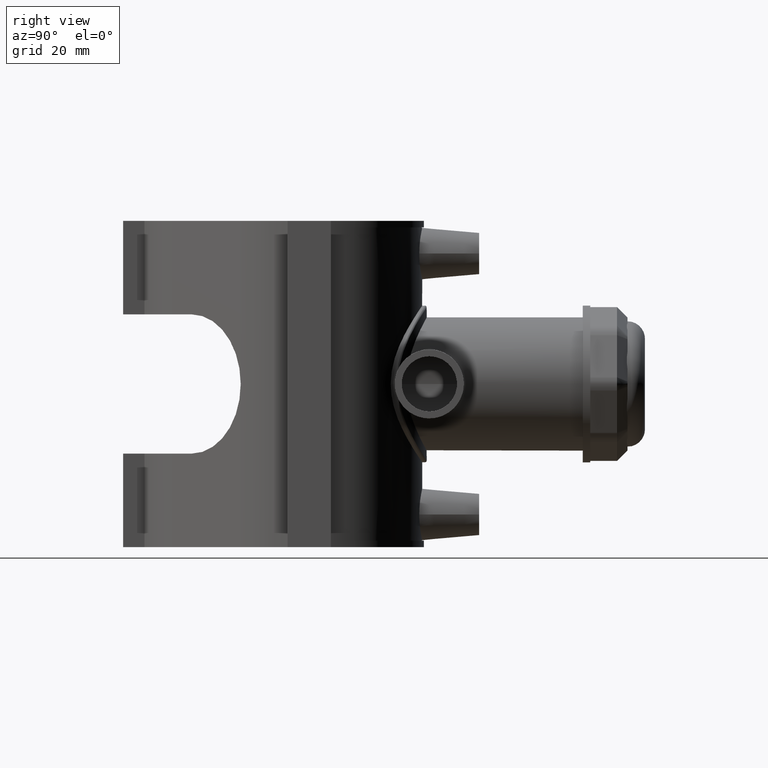
[diagram: clean part render]
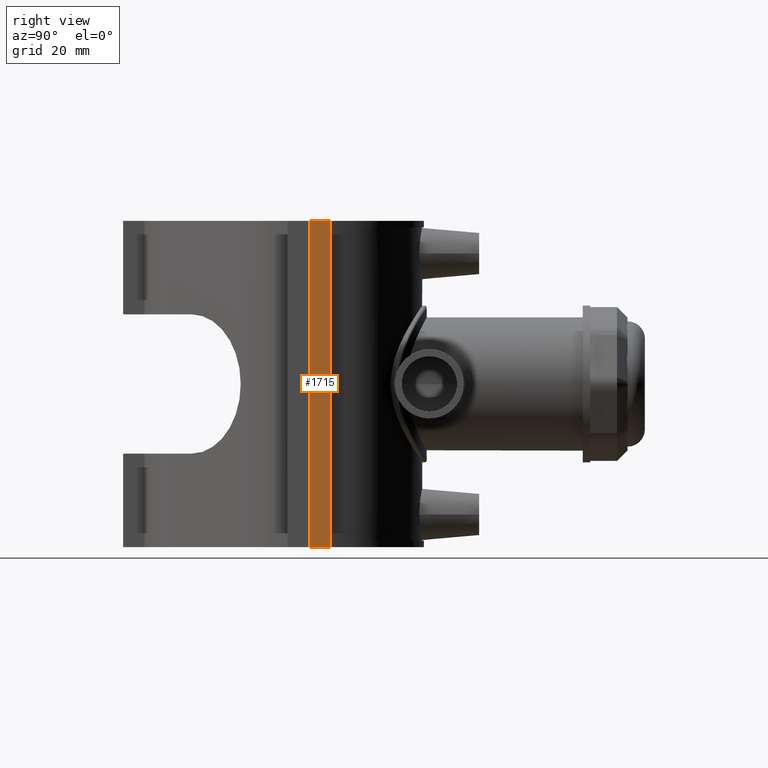
[diagram: same view with one face highlighted and labeled with its STEP entity id]
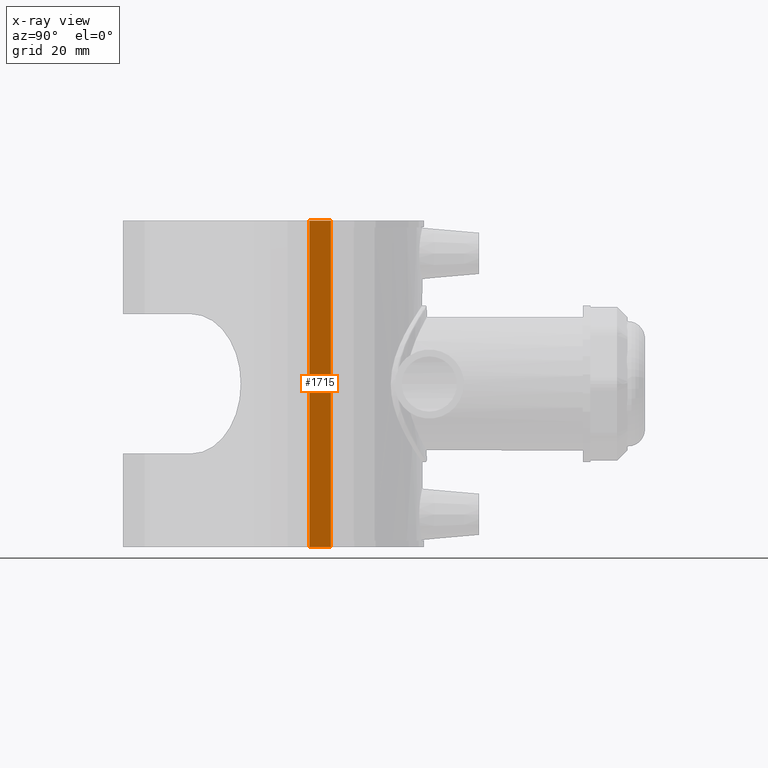
[diagram: x-ray of the same camera — body ghosted, the highlighted face saturated]
A machine part, right view. The second image highlights one B-rep face of the part: STEP entity #1715.
The next image is the same camera in x-ray: the body ghosted, the highlighted face saturated — about 0% of this face is hidden behind the body in this view.
In plain terms, the highlighted planar face has unit normal (1, 0, 0).
Its self-contained STEP definition (entity closure, byte-faithful):
#101=LINE('',#3242,#244);
#115=LINE('',#3380,#258);
#117=LINE('',#3383,#260);
#120=LINE('',#3389,#263);
#244=VECTOR('',#2192,118.);
#258=VECTOR('',#2268,118.);
#260=VECTOR('',#2272,7.82499999999999);
#263=VECTOR('',#2281,7.82499999999999);
#358=PLANE('',#1879);
#554=FACE_OUTER_BOUND('',#684,.T.);
#684=EDGE_LOOP('',(#1465,#1466,#1467,#1468));
#822=VERTEX_POINT('',#3239);
#823=VERTEX_POINT('',#3241);
#847=VERTEX_POINT('',#3377);
#848=VERTEX_POINT('',#3379);
#1027=EDGE_CURVE('',#823,#822,#101,.T.);
#1056=EDGE_CURVE('',#848,#847,#115,.T.);
#1058=EDGE_CURVE('',#848,#822,#117,.T.);
#1063=EDGE_CURVE('',#823,#847,#120,.T.);
#1465=ORIENTED_EDGE('',*,*,#1056,.T.);
#1466=ORIENTED_EDGE('',*,*,#1063,.F.);
#1467=ORIENTED_EDGE('',*,*,#1027,.T.);
#1468=ORIENTED_EDGE('',*,*,#1058,.F.);
#1715=ADVANCED_FACE('',(#554),#358,.T.);
#1879=AXIS2_PLACEMENT_3D('',#3391,#2284,#2285);
#2192=DIRECTION('',(0.,0.,1.));
#2268=DIRECTION('',(0.,0.,-1.));
#2272=DIRECTION('',(0.,1.,0.));
#2281=DIRECTION('',(0.,-1.,0.));
#2284=DIRECTION('center_axis',(1.,0.,0.));
#2285=DIRECTION('ref_axis',(0.,1.,0.));
#3239=CARTESIAN_POINT('',(50.,7.87499999999999,59.));
#3241=CARTESIAN_POINT('',(50.,7.87499999999999,-59.));
#3242=CARTESIAN_POINT('',(50.,7.87499999999999,0.));
#3377=CARTESIAN_POINT('',(50.,0.0500000000000078,-59.));
#3379=CARTESIAN_POINT('',(50.,0.0500000000000078,59.));
#3380=CARTESIAN_POINT('',(50.,0.0500000000000078,-29.5));
#3383=CARTESIAN_POINT('',(50.,-7.87500000000001,59.));
#3389=CARTESIAN_POINT('',(50.,-7.87500000000001,-59.));
#3391=CARTESIAN_POINT('Origin',(50.,-7.87500000000001,0.));